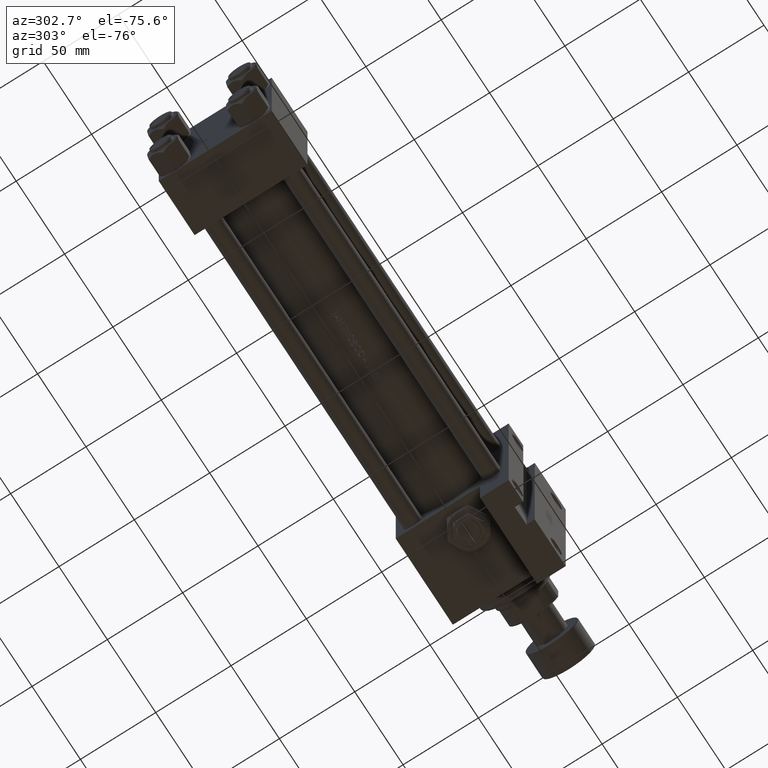
[diagram: clean part render]
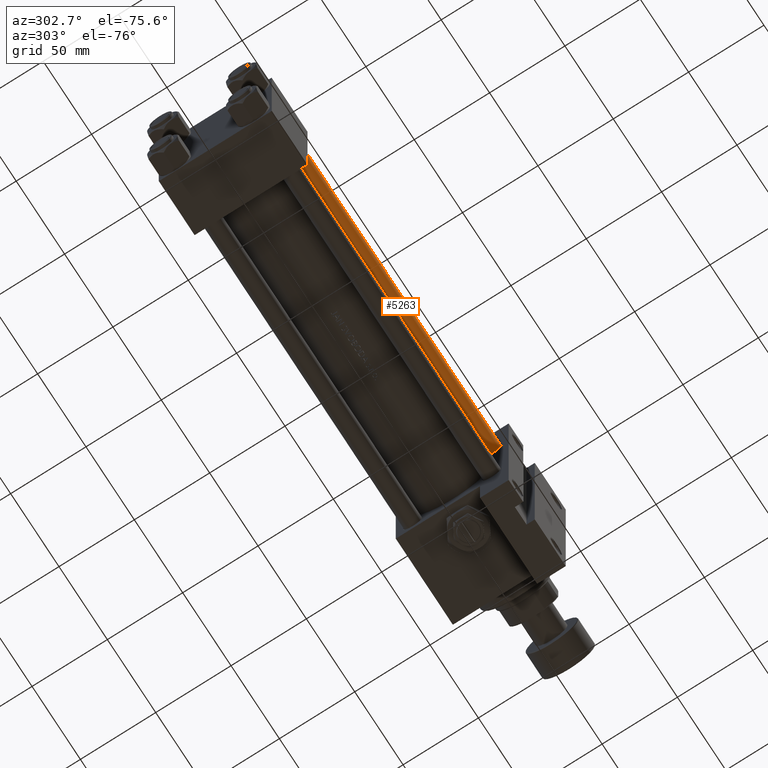
[diagram: same view with one face highlighted and labeled with its STEP entity id]
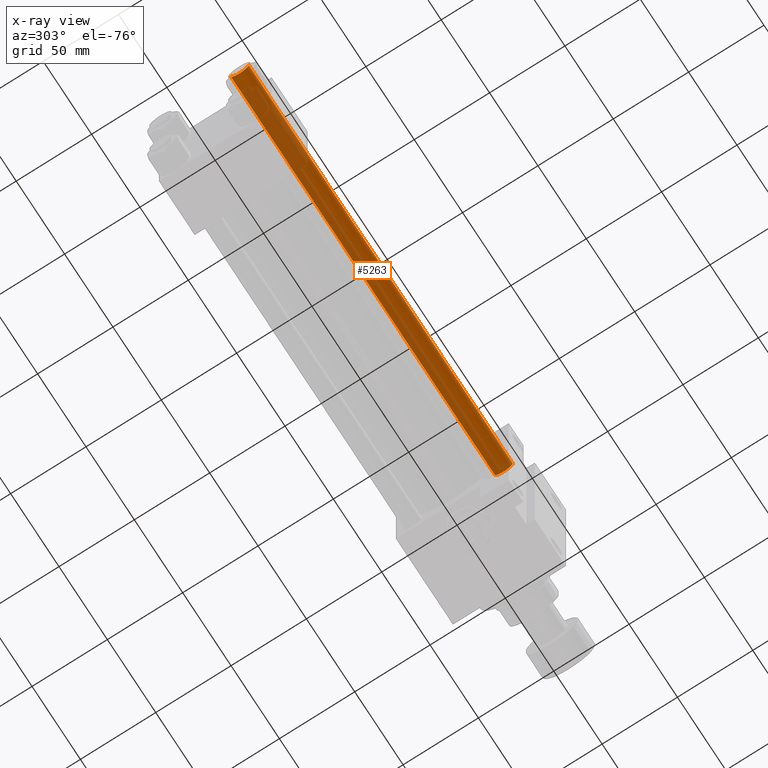
[diagram: x-ray of the same camera — body ghosted, the highlighted face saturated]
A machine part, auxiliary view. The second image highlights one B-rep face of the part: STEP entity #5263.
The next image is the same camera in x-ray: the body ghosted, the highlighted face saturated — about 49% of this face is hidden behind the body in this view.
In plain terms, the highlighted cylindrical surface (edge-blend (fillet) strip) has radius 6 mm, axis along (-1, 0, 0).
Its self-contained STEP definition (entity closure, byte-faithful):
#60 = EDGE_CURVE ( 'NONE', #27662, #5077, #37429, .T. ) ;
#2040 = EDGE_CURVE ( 'NONE', #27662, #37582, #33221, .T. ) ;
#4856 = ORIENTED_EDGE ( 'NONE', *, *, #60, .T. ) ;
#5077 = VERTEX_POINT ( 'NONE', #40153 ) ;
#5263 = ADVANCED_FACE ( 'NONE', ( #17749 ), #47609, .T. ) ;
#5622 = CARTESIAN_POINT ( 'NONE',  ( 0.000000000000000000, 0.000000000000000000, 273.5000000000000000 ) ) ;
#5989 = CARTESIAN_POINT ( 'NONE',  ( 0.000000000000000000, 0.000000000000000000, 274.0000000000000000 ) ) ;
#6721 = EDGE_CURVE ( 'NONE', #5077, #43821, #21051, .T. ) ;
#8314 = CARTESIAN_POINT ( 'NONE',  ( 6.000000000000000888, 7.347880794884120722E-16, 0.5000000000000559552 ) ) ;
#13534 = DIRECTION ( 'NONE',  ( -0.000000000000000000, -0.000000000000000000, -1.000000000000000000 ) ) ;
#14018 = CARTESIAN_POINT ( 'NONE',  ( -6.000000000000000888, 0.000000000000000000, 273.5000000000000000 ) ) ;
#17019 = DIRECTION ( 'NONE',  ( -1.000000000000000000, 0.000000000000000000, 0.000000000000000000 ) ) ;
#17049 = CARTESIAN_POINT ( 'NONE',  ( 0.000000000000000000, 0.000000000000000000, 0.5000000000000559552 ) ) ;
#17622 = DIRECTION ( 'NONE',  ( 0.000000000000000000, 0.000000000000000000, -1.000000000000000000 ) ) ;
#17749 = FACE_OUTER_BOUND ( 'NONE', #23781, .T. ) ;
#19854 = VECTOR ( 'NONE', #44031, 1000.000000000000000 ) ;
#20549 = CARTESIAN_POINT ( 'NONE',  ( 6.000000000000000888, 7.347880794884120722E-16, 274.0000000000000000 ) ) ;
#21051 = LINE ( 'NONE', #20549, #33500 ) ;
#21195 = EDGE_CURVE ( 'NONE', #43821, #37582, #37849, .T. ) ;
#23781 = EDGE_LOOP ( 'NONE', ( #4856, #36555, #30182, #44032 ) ) ;
#27460 = AXIS2_PLACEMENT_3D ( 'NONE', #17049, #32335, #47636 ) ;
#27662 = VERTEX_POINT ( 'NONE', #14018 ) ;
#30182 = ORIENTED_EDGE ( 'NONE', *, *, #21195, .T. ) ;
#31987 = AXIS2_PLACEMENT_3D ( 'NONE', #5989, #40091, #17019 ) ;
#32335 = DIRECTION ( 'NONE',  ( -0.000000000000000000, -0.000000000000000000, 1.000000000000000000 ) ) ;
#32658 = DIRECTION ( 'NONE',  ( 1.000000000000000000, 0.000000000000000000, 0.000000000000000000 ) ) ;
#32978 = CARTESIAN_POINT ( 'NONE',  ( -6.000000000000000888, 0.000000000000000000, 274.0000000000000000 ) ) ;
#33221 = LINE ( 'NONE', #32978, #19854 ) ;
#33500 = VECTOR ( 'NONE', #13534, 1000.000000000000000 ) ;
#36555 = ORIENTED_EDGE ( 'NONE', *, *, #6721, .T. ) ;
#37429 = CIRCLE ( 'NONE', #41391, 6.000000000000000888 ) ;
#37582 = VERTEX_POINT ( 'NONE', #41830 ) ;
#37849 = CIRCLE ( 'NONE', #27460, 6.000000000000000888 ) ;
#40091 = DIRECTION ( 'NONE',  ( -0.000000000000000000, -0.000000000000000000, -1.000000000000000000 ) ) ;
#40153 = CARTESIAN_POINT ( 'NONE',  ( 6.000000000000000888, 7.347880794884120722E-16, 273.5000000000000000 ) ) ;
#41391 = AXIS2_PLACEMENT_3D ( 'NONE', #5622, #17622, #32658 ) ;
#41830 = CARTESIAN_POINT ( 'NONE',  ( -6.000000000000000888, 0.000000000000000000, 0.5000000000000559552 ) ) ;
#43821 = VERTEX_POINT ( 'NONE', #8314 ) ;
#44031 = DIRECTION ( 'NONE',  ( -0.000000000000000000, -0.000000000000000000, -1.000000000000000000 ) ) ;
#44032 = ORIENTED_EDGE ( 'NONE', *, *, #2040, .F. ) ;
#47609 = CYLINDRICAL_SURFACE ( 'NONE', #31987, 6.000000000000000888 ) ;
#47636 = DIRECTION ( 'NONE',  ( 1.000000000000000000, 0.000000000000000000, 0.000000000000000000 ) ) ;